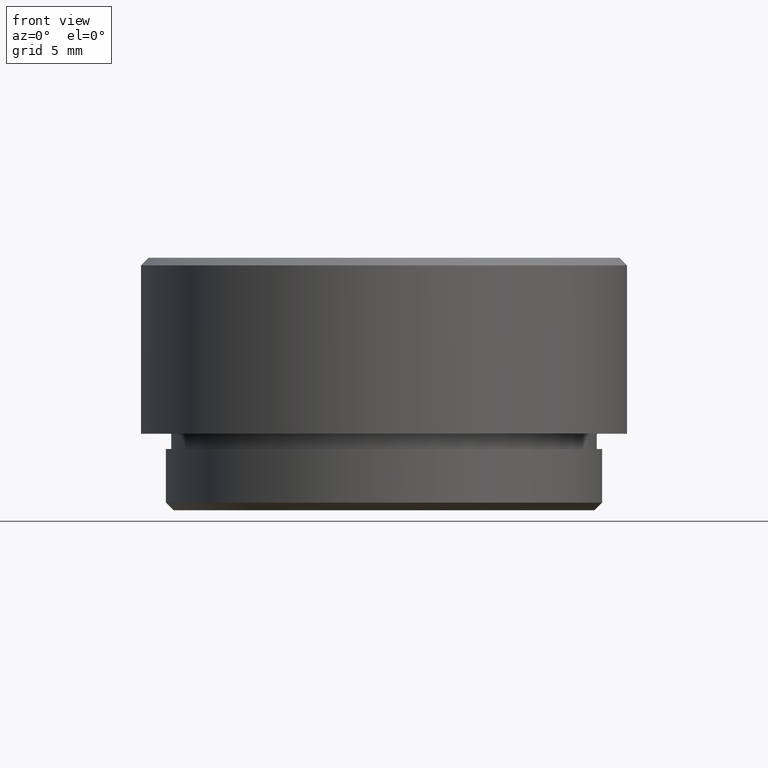
[diagram: clean part render]
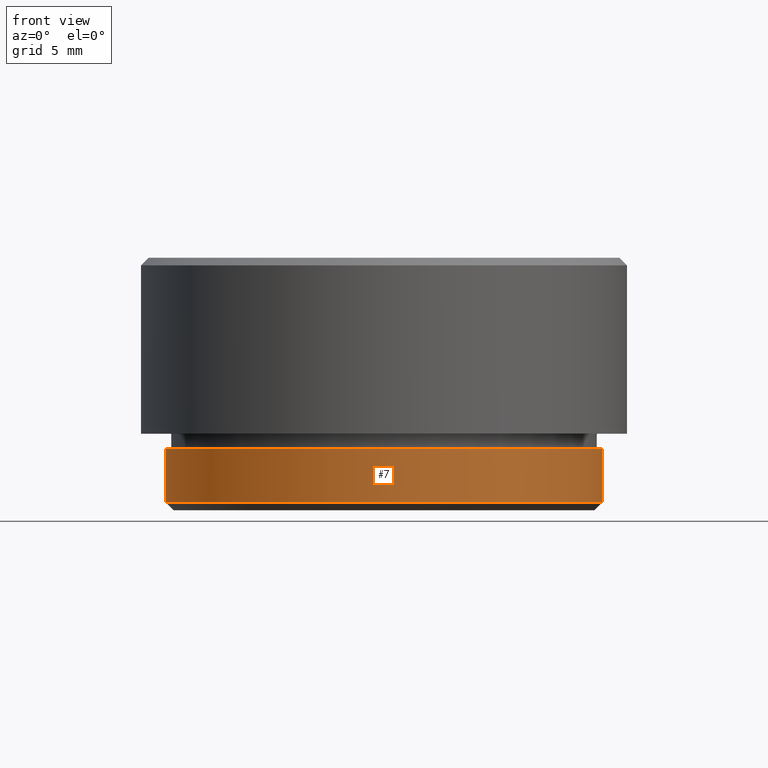
[diagram: same view with one face highlighted and labeled with its STEP entity id]
A machine part, front view. The second image highlights one B-rep face of the part: STEP entity #7.
In plain terms, the highlighted cylindrical surface (partial cylindrical patch) has radius 14.25 mm, axis along (-0, -0, -1).
Its self-contained STEP definition (entity closure, byte-faithful):
#7 = ADVANCED_FACE ( 'NONE', ( #1470 ), #271, .T. ) ;
#15 = CARTESIAN_POINT ( 'NONE',  ( 14.25000000000000000, 1.745121688784978228E-15, 5.000000000000000000 ) ) ;
#37 = AXIS2_PLACEMENT_3D ( 'NONE', #862, #206, #747 ) ;
#103 = DIRECTION ( 'NONE',  ( -0.000000000000000000, -0.000000000000000000, -1.000000000000000000 ) ) ;
#109 = DIRECTION ( 'NONE',  ( -1.000000000000000000, 0.000000000000000000, 0.000000000000000000 ) ) ;
#117 = ORIENTED_EDGE ( 'NONE', *, *, #282, .T. ) ;
#144 = ORIENTED_EDGE ( 'NONE', *, *, #430, .F. ) ;
#206 = DIRECTION ( 'NONE',  ( 0.000000000000000000, 0.000000000000000000, 1.000000000000000000 ) ) ;
#232 = CARTESIAN_POINT ( 'NONE',  ( -14.25000000000000000, 0.000000000000000000, 5.000000000000000000 ) ) ;
#271 = CYLINDRICAL_SURFACE ( 'NONE', #1574, 14.25000000000000000 ) ;
#282 = EDGE_CURVE ( 'NONE', #453, #1306, #782, .T. ) ;
#287 = CARTESIAN_POINT ( 'NONE',  ( 14.25000000000000000, 1.745121688784978228E-15, 0.4999999999999970024 ) ) ;
#293 = DIRECTION ( 'NONE',  ( -1.000000000000000000, 0.000000000000000000, 0.000000000000000000 ) ) ;
#387 = EDGE_LOOP ( 'NONE', ( #144, #521, #564, #117 ) ) ;
#430 = EDGE_CURVE ( 'NONE', #441, #1306, #1472, .T. ) ;
#441 = VERTEX_POINT ( 'NONE', #802 ) ;
#453 = VERTEX_POINT ( 'NONE', #817 ) ;
#521 = ORIENTED_EDGE ( 'NONE', *, *, #990, .T. ) ;
#564 = ORIENTED_EDGE ( 'NONE', *, *, #665, .T. ) ;
#582 = CARTESIAN_POINT ( 'NONE',  ( 0.000000000000000000, 0.000000000000000000, 4.000000000000000000 ) ) ;
#635 = CARTESIAN_POINT ( 'NONE',  ( -14.25000000000000000, 0.000000000000000000, 4.000000000000000000 ) ) ;
#656 = VERTEX_POINT ( 'NONE', #635 ) ;
#657 = AXIS2_PLACEMENT_3D ( 'NONE', #582, #1492, #293 ) ;
#665 = EDGE_CURVE ( 'NONE', #656, #453, #757, .T. ) ;
#747 = DIRECTION ( 'NONE',  ( 1.000000000000000000, 0.000000000000000000, 0.000000000000000000 ) ) ;
#757 = LINE ( 'NONE', #232, #1499 ) ;
#782 = CIRCLE ( 'NONE', #37, 14.25000000000000000 ) ;
#802 = CARTESIAN_POINT ( 'NONE',  ( 14.25000000000000000, 1.745121688784978228E-15, 4.000000000000000000 ) ) ;
#817 = CARTESIAN_POINT ( 'NONE',  ( -14.25000000000000000, 0.000000000000000000, 0.4999999999999970024 ) ) ;
#862 = CARTESIAN_POINT ( 'NONE',  ( 0.000000000000000000, 0.000000000000000000, 0.4999999999999970024 ) ) ;
#990 = EDGE_CURVE ( 'NONE', #441, #656, #1233, .T. ) ;
#1093 = CARTESIAN_POINT ( 'NONE',  ( 0.000000000000000000, 0.000000000000000000, 5.000000000000000000 ) ) ;
#1233 = CIRCLE ( 'NONE', #657, 14.25000000000000000 ) ;
#1237 = VECTOR ( 'NONE', #1360, 1000.000000000000000 ) ;
#1285 = DIRECTION ( 'NONE',  ( -0.000000000000000000, -0.000000000000000000, -1.000000000000000000 ) ) ;
#1306 = VERTEX_POINT ( 'NONE', #287 ) ;
#1360 = DIRECTION ( 'NONE',  ( -0.000000000000000000, -0.000000000000000000, -1.000000000000000000 ) ) ;
#1470 = FACE_OUTER_BOUND ( 'NONE', #387, .T. ) ;
#1472 = LINE ( 'NONE', #15, #1237 ) ;
#1492 = DIRECTION ( 'NONE',  ( 0.000000000000000000, 0.000000000000000000, -1.000000000000000000 ) ) ;
#1499 = VECTOR ( 'NONE', #103, 1000.000000000000000 ) ;
#1574 = AXIS2_PLACEMENT_3D ( 'NONE', #1093, #1285, #109 ) ;